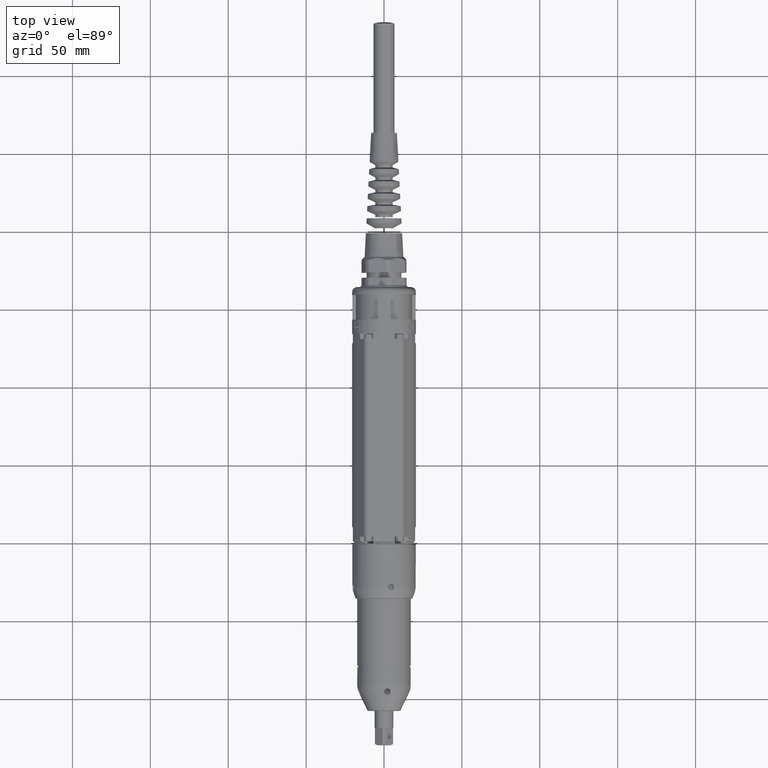
[diagram: clean part render]
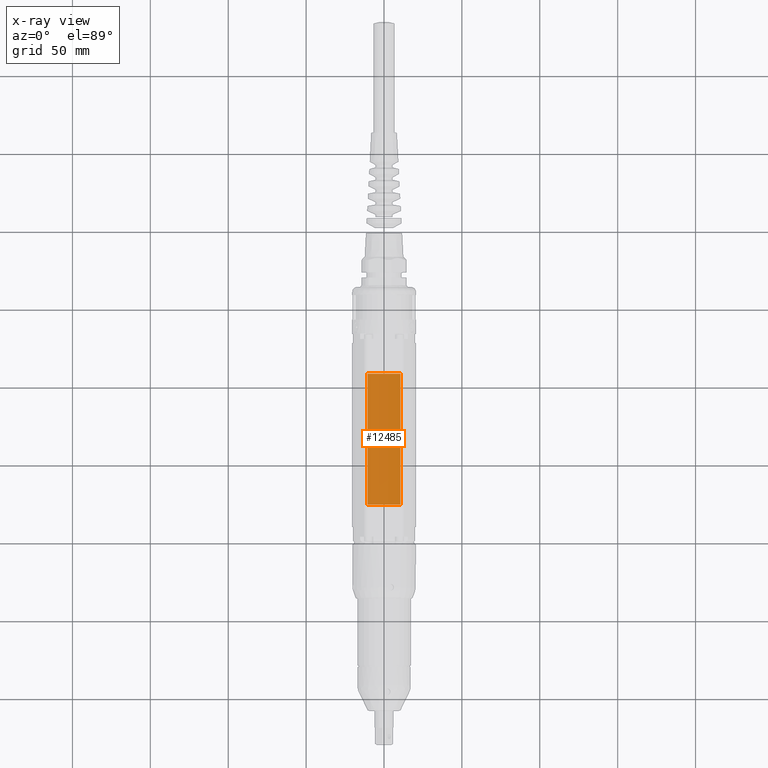
[diagram: x-ray — body ghosted, one internal face saturated and labeled with its STEP entity id]
A machine part, top view, then the same camera in x-ray: the body is ghosted and one INTERNAL B-rep face — a face not visible from any outside direction — is saturated and labeled: STEP entity #12485.
In plain terms, the highlighted cylindrical surface (partial cylindrical patch) has radius 36 mm, axis along (-0, -1, -0).
Its self-contained STEP definition (entity closure, byte-faithful):
#1393=B_SPLINE_CURVE_WITH_KNOTS('',3,(#18505,#18506,#18507,#18508,#18509,
#18510),.UNSPECIFIED.,.F.,.F.,(4,2,4),(5.27043761638393,5.30525354545802,
5.47336629076342),.UNSPECIFIED.);
#1395=B_SPLINE_CURVE_WITH_KNOTS('',3,(#18523,#18524,#18525,#18526,#18527,
#18528),.UNSPECIFIED.,.F.,.F.,(4,2,4),(7.90061795369912,8.06873069900452,
8.10354662807862),.UNSPECIFIED.);
#1397=B_SPLINE_CURVE_WITH_KNOTS('',3,(#18571,#18572,#18573,#18574,#18575,
#18576),.UNSPECIFIED.,.F.,.F.,(4,2,4),(3.44262320554494,3.61073595085034,
3.64555187992443),.UNSPECIFIED.);
#1399=B_SPLINE_CURVE_WITH_KNOTS('',3,(#18597,#18598,#18599,#18600,#18601,
#18602),.UNSPECIFIED.,.F.,.F.,(4,2,4),(0.812442868229744,0.847258797303845,
1.01537154260924),.UNSPECIFIED.);
#2079=FACE_OUTER_BOUND('',#2855,.T.);
#2855=EDGE_LOOP('',(#11186,#11187,#11188,#11189,#11190,#11191,#11192,#11193));
#3779=LINE('',#21781,#4668);
#3780=LINE('',#21783,#4669);
#4668=VECTOR('',#16967,10.);
#4669=VECTOR('',#16970,10.);
#4883=CIRCLE('',#12855,36.);
#4885=CIRCLE('',#12859,36.);
#5645=VERTEX_POINT('',#18445);
#5646=VERTEX_POINT('',#18446);
#5653=VERTEX_POINT('',#18467);
#5654=VERTEX_POINT('',#18468);
#5661=VERTEX_POINT('',#18503);
#5664=VERTEX_POINT('',#18522);
#5676=VERTEX_POINT('',#18570);
#5683=VERTEX_POINT('',#18595);
#6822=EDGE_CURVE('',#5645,#5646,#4883,.T.);
#6832=EDGE_CURVE('',#5653,#5654,#4885,.T.);
#6851=EDGE_CURVE('',#5646,#5661,#1393,.T.);
#6855=EDGE_CURVE('',#5664,#5653,#1395,.T.);
#6876=EDGE_CURVE('',#5676,#5645,#1397,.T.);
#6884=EDGE_CURVE('',#5654,#5683,#1399,.T.);
#7992=EDGE_CURVE('',#5661,#5664,#3779,.T.);
#7993=EDGE_CURVE('',#5676,#5683,#3780,.T.);
#11186=ORIENTED_EDGE('',*,*,#6855,.T.);
#11187=ORIENTED_EDGE('',*,*,#6832,.T.);
#11188=ORIENTED_EDGE('',*,*,#6884,.T.);
#11189=ORIENTED_EDGE('',*,*,#7993,.F.);
#11190=ORIENTED_EDGE('',*,*,#6876,.T.);
#11191=ORIENTED_EDGE('',*,*,#6822,.T.);
#11192=ORIENTED_EDGE('',*,*,#6851,.T.);
#11193=ORIENTED_EDGE('',*,*,#7992,.T.);
#11852=CYLINDRICAL_SURFACE('',#13767,36.);
#12485=ADVANCED_FACE('',(#2079),#11852,.T.);
#12855=AXIS2_PLACEMENT_3D('',#18447,#14551,#14552);
#12859=AXIS2_PLACEMENT_3D('',#18469,#14566,#14567);
#13767=AXIS2_PLACEMENT_3D('',#21785,#16973,#16974);
#14551=DIRECTION('center_axis',(-1.15255911821437E-13,-1.,-6.66133814775086E-16));
#14552=DIRECTION('ref_axis',(-0.29166666666726,3.42534779468862E-14,-0.956520023603902));
#14566=DIRECTION('center_axis',(1.15255911821437E-13,1.,6.66133814775086E-16));
#14567=DIRECTION('ref_axis',(-0.29166666666726,3.42534779468862E-14,-0.956520023603902));
#16967=DIRECTION('',(-1.14886129486062E-13,-1.,-6.02154860813605E-16));
#16970=DIRECTION('',(-1.14886129486062E-13,-1.,-6.02154860813605E-16));
#16973=DIRECTION('center_axis',(-1.14886129486062E-13,-1.,-6.02154860813605E-16));
#16974=DIRECTION('ref_axis',(-0.29166666666726,3.40844276151817E-14,-0.956520023603902));
#18445=CARTESIAN_POINT('',(-8.42614977320009,109.,-34.9999999999943));
#18446=CARTESIAN_POINT('',(8.42614977315263,108.999999999998,-35.0000000000048));
#18447=CARTESIAN_POINT('Origin',(-2.03079853563461E-12,108.999999999999,
4.53128815074647E-13));
#18467=CARTESIAN_POINT('',(8.42614977314293,24.9999999999979,-35.0000000000048));
#18468=CARTESIAN_POINT('',(-8.42614977320976,24.9999999999998,-34.9999999999944));
#18469=CARTESIAN_POINT('Origin',(-1.17122951286353E-11,24.9999999999988,
3.9717357463354E-13));
#18503=CARTESIAN_POINT('',(10.4999999999766,108.967943184283,-34.434720849753));
#18505=CARTESIAN_POINT('Ctrl Pts',(8.42614977315263,108.999999999998,-35.0000000000048));
#18506=CARTESIAN_POINT('Ctrl Pts',(8.54621482194815,108.999999999998,-34.9710946833284));
#18507=CARTESIAN_POINT('Ctrl Pts',(8.66607585899934,108.999749387529,-34.9415847985492));
#18508=CARTESIAN_POINT('Ctrl Pts',(9.36337367950961,108.99664238738,-34.7661050536328));
#18509=CARTESIAN_POINT('Ctrl Pts',(9.93561207989143,108.987525172684,-34.6068167173728));
#18510=CARTESIAN_POINT('Ctrl Pts',(10.4999999999766,108.967943184283,-34.434720849753));
#18522=CARTESIAN_POINT('',(10.4999999999669,25.0320568157121,-34.4347208497531));
#18523=CARTESIAN_POINT('Ctrl Pts',(10.4999999999669,25.0320568157121,-34.4347208497531));
#18524=CARTESIAN_POINT('Ctrl Pts',(9.93561207988175,25.0124748273114,-34.6068167173729));
#18525=CARTESIAN_POINT('Ctrl Pts',(9.36337367949993,25.0033576126155,-34.7661050536328));
#18526=CARTESIAN_POINT('Ctrl Pts',(8.66607585898965,25.0002506124668,-34.9415847985492));
#18527=CARTESIAN_POINT('Ctrl Pts',(8.54621482193846,24.9999999999979,-34.9710946833285));
#18528=CARTESIAN_POINT('Ctrl Pts',(8.42614977314293,24.9999999999979,-35.0000000000048));
#18570=CARTESIAN_POINT('',(-10.5000000000234,108.967943184286,-34.43472084974));
#18571=CARTESIAN_POINT('Ctrl Pts',(-10.5000000000234,108.967943184286,-34.43472084974));
#18572=CARTESIAN_POINT('Ctrl Pts',(-9.93561207993841,108.987525172686,-34.6068167173605));
#18573=CARTESIAN_POINT('Ctrl Pts',(-9.36337367955679,108.996642387382,-34.7661050536212));
#18574=CARTESIAN_POINT('Ctrl Pts',(-8.66607585904673,108.999749387531,-34.9415847985384));
#18575=CARTESIAN_POINT('Ctrl Pts',(-8.54621482199558,109.,-34.9710946833178));
#18576=CARTESIAN_POINT('Ctrl Pts',(-8.42614977320009,109.,-34.9999999999943));
#18595=CARTESIAN_POINT('',(-10.5000000000331,25.0320568157145,-34.4347208497401));
#18597=CARTESIAN_POINT('Ctrl Pts',(-8.42614977320976,24.9999999999998,-34.9999999999944));
#18598=CARTESIAN_POINT('Ctrl Pts',(-8.54621482200525,24.9999999999999,-34.9710946833179));
#18599=CARTESIAN_POINT('Ctrl Pts',(-8.66607585905641,25.0002506124688,-34.9415847985385));
#18600=CARTESIAN_POINT('Ctrl Pts',(-9.36337367956647,25.0033576126176,-34.7661050536212));
#18601=CARTESIAN_POINT('Ctrl Pts',(-9.93561207994809,25.0124748273137,-34.6068167173605));
#18602=CARTESIAN_POINT('Ctrl Pts',(-10.5000000000331,25.0320568157145,-34.4347208497401));
#21781=CARTESIAN_POINT('',(10.4999999999788,127.999999999998,-34.434720849753));
#21783=CARTESIAN_POINT('',(-10.5000000000212,128.,-34.43472084974));
#21785=CARTESIAN_POINT('Origin',(1.59872115546023E-13,127.999999999999,
4.61852778244065E-13));